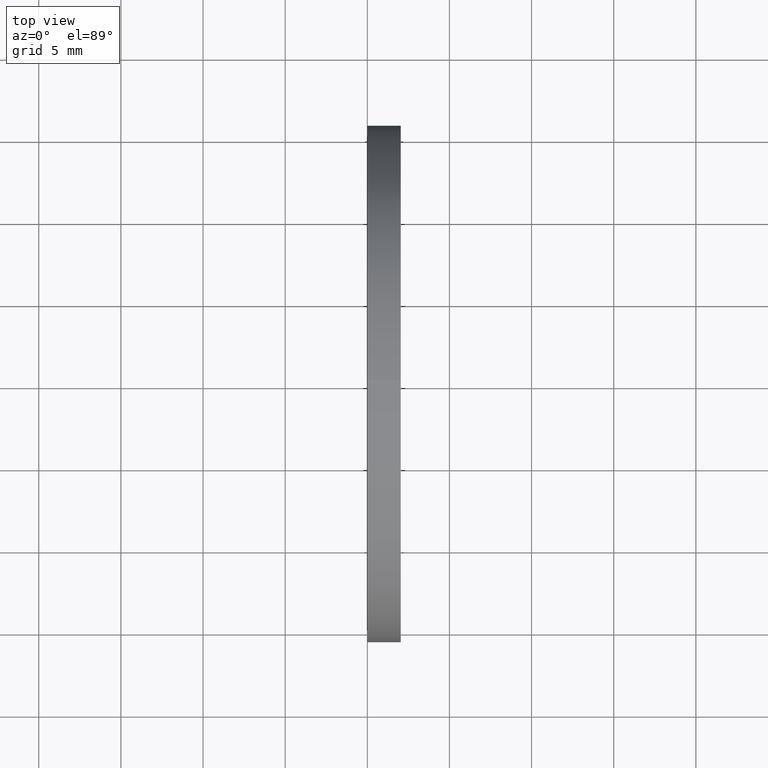
[diagram: clean part render]
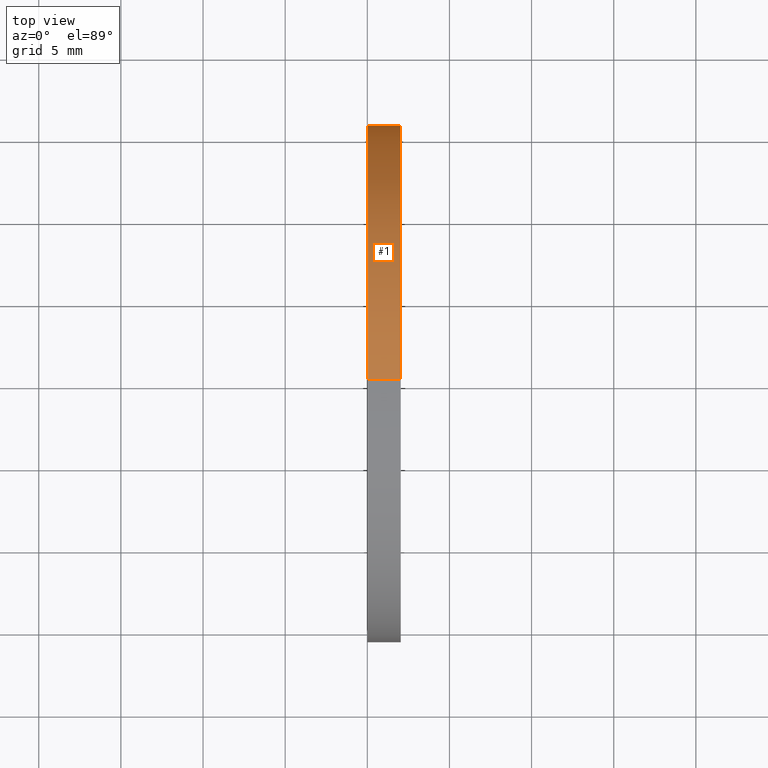
[diagram: same view with one face highlighted and labeled with its STEP entity id]
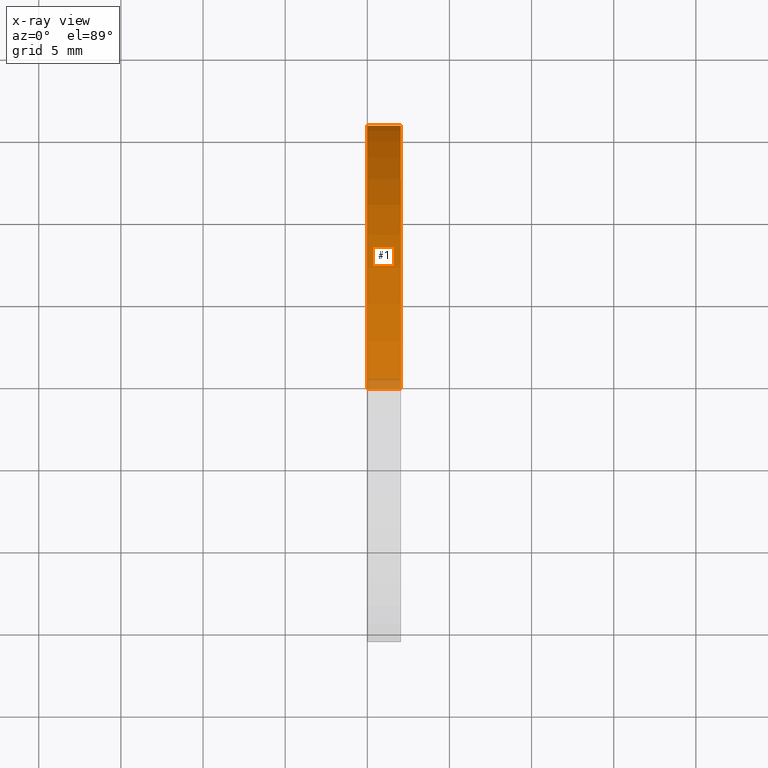
[diagram: x-ray of the same camera — body ghosted, the highlighted face saturated]
A machine part, top view. The second image highlights one B-rep face of the part: STEP entity #1.
The next image is the same camera in x-ray: the body ghosted, the highlighted face saturated — about 3% of this face is hidden behind the body in this view.
In plain terms, the highlighted cylindrical surface (partial cylindrical patch) has radius 15.748 mm, axis along (-1, 0, 0).
Its self-contained STEP definition (entity closure, byte-faithful):
#1 = ADVANCED_FACE ( 'NONE', ( #39 ), #36, .T. ) ;
#2 = EDGE_LOOP ( 'NONE', ( #3, #229, #232, #235 ) ) ;
#3 = ORIENTED_EDGE ( 'NONE', *, *, #226, .T. ) ;
#36 = CYLINDRICAL_SURFACE ( 'NONE', #42, 0.6200000000000000000 ) ;
#39 = FACE_OUTER_BOUND ( 'NONE', #2, .T. ) ;
#40 = DIRECTION ( 'NONE',  ( -1.000000000000000000, 0.0000000000000000000, 0.0000000000000000000 ) ) ;
#41 = CARTESIAN_POINT ( 'NONE',  ( -1.721125226614714300, 0.0000000000000000000, 0.0000000000000000000 ) ) ;
#42 = AXIS2_PLACEMENT_3D ( 'NONE', #41, #40, #58 ) ;
#58 = DIRECTION ( 'NONE',  ( 0.0000000000000000000, 0.0000000000000000000, 1.000000000000000000 ) ) ;
#82 = CARTESIAN_POINT ( 'NONE',  ( 0.07999999999999996000, 0.0000000000000000000, 0.0000000000000000000 ) ) ;
#84 = DIRECTION ( 'NONE',  ( -1.000000000000000000, 0.0000000000000000000, 0.0000000000000000000 ) ) ;
#85 = DIRECTION ( 'NONE',  ( 0.0000000000000000000, 0.0000000000000000000, 1.000000000000000000 ) ) ;
#87 = AXIS2_PLACEMENT_3D ( 'NONE', #82, #84, #85 ) ;
#88 = CIRCLE ( 'NONE', #87, 0.6200000000000000000 ) ;
#101 = CARTESIAN_POINT ( 'NONE',  ( 0.0000000000000000000, 7.592810154713589100E-017, -0.6200000000000000000 ) ) ;
#102 = DIRECTION ( 'NONE',  ( -1.000000000000000000, 0.0000000000000000000, 0.0000000000000000000 ) ) ;
#106 = VECTOR ( 'NONE', #152, 39.37007874015748100 ) ;
#109 = LINE ( 'NONE', #153, #106 ) ;
#110 = CARTESIAN_POINT ( 'NONE',  ( -1.721125226614714300, 0.0000000000000000000, 0.6200000000000000000 ) ) ;
#111 = LINE ( 'NONE', #110, #142 ) ;
#125 = DIRECTION ( 'NONE',  ( 0.0000000000000000000, 0.0000000000000000000, 1.000000000000000000 ) ) ;
#136 = CIRCLE ( 'NONE', #148, 0.6200000000000000000 ) ;
#138 = CARTESIAN_POINT ( 'NONE',  ( 0.07999999999999996000, 7.592810154713589100E-017, -0.6200000000000000000 ) ) ;
#139 = CARTESIAN_POINT ( 'NONE',  ( 0.0000000000000000000, 0.0000000000000000000, 0.6200000000000000000 ) ) ;
#141 = DIRECTION ( 'NONE',  ( -1.000000000000000000, 0.0000000000000000000, 0.0000000000000000000 ) ) ;
#142 = VECTOR ( 'NONE', #141, 39.37007874015748100 ) ;
#143 = CARTESIAN_POINT ( 'NONE',  ( 0.07999999999999996000, 0.0000000000000000000, 0.6200000000000000000 ) ) ;
#147 = CARTESIAN_POINT ( 'NONE',  ( 0.0000000000000000000, 0.0000000000000000000, 0.0000000000000000000 ) ) ;
#148 = AXIS2_PLACEMENT_3D ( 'NONE', #147, #102, #125 ) ;
#152 = DIRECTION ( 'NONE',  ( -1.000000000000000000, 0.0000000000000000000, 0.0000000000000000000 ) ) ;
#153 = CARTESIAN_POINT ( 'NONE',  ( -1.721125226614714300, 7.592810154713589100E-017, -0.6200000000000000000 ) ) ;
#226 = EDGE_CURVE ( 'NONE', #227, #228, #88, .T. ) ;
#227 = VERTEX_POINT ( 'NONE', #143 ) ;
#228 = VERTEX_POINT ( 'NONE', #138 ) ;
#229 = ORIENTED_EDGE ( 'NONE', *, *, #230, .T. ) ;
#230 = EDGE_CURVE ( 'NONE', #228, #231, #109, .T. ) ;
#231 = VERTEX_POINT ( 'NONE', #101 ) ;
#232 = ORIENTED_EDGE ( 'NONE', *, *, #233, .F. ) ;
#233 = EDGE_CURVE ( 'NONE', #234, #231, #136, .T. ) ;
#234 = VERTEX_POINT ( 'NONE', #139 ) ;
#235 = ORIENTED_EDGE ( 'NONE', *, *, #236, .F. ) ;
#236 = EDGE_CURVE ( 'NONE', #227, #234, #111, .T. ) ;